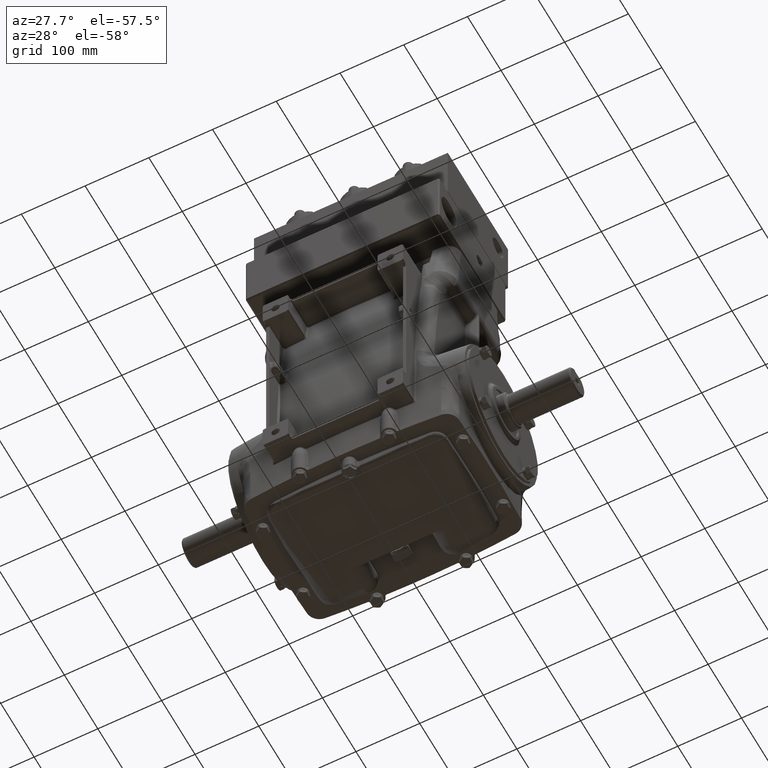
[diagram: clean part render]
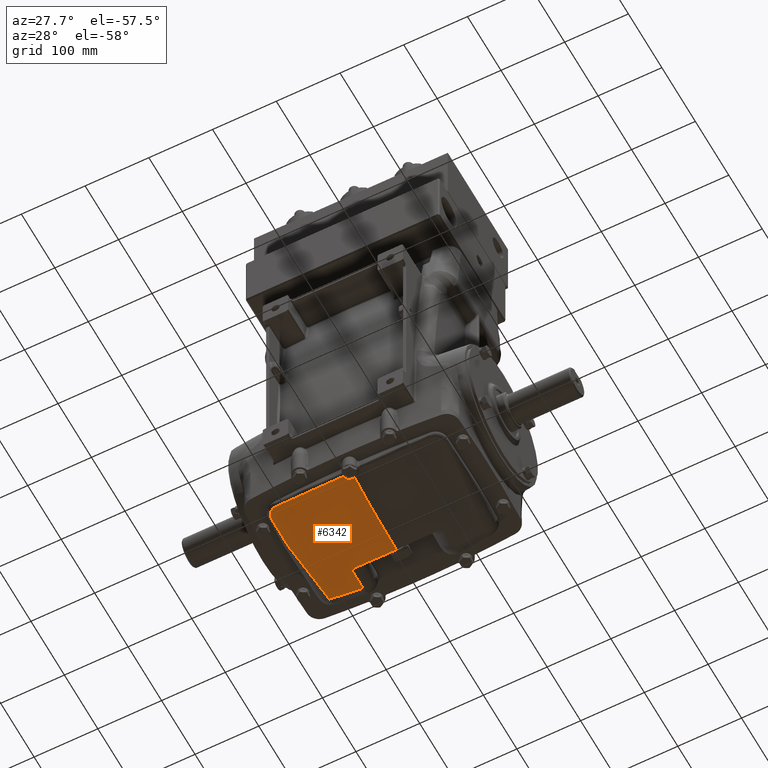
[diagram: same view with one face highlighted and labeled with its STEP entity id]
A machine part, auxiliary view. The second image highlights one B-rep face of the part: STEP entity #6342.
In plain terms, the highlighted toroidal blend (fillet) surface has major radius 300 mm and minor (blend) radius 700 mm.
Its self-contained STEP definition (entity closure, byte-faithful):
#177 = EDGE_CURVE ( 'NONE', #40398, #78798, #35794, .T. ) ;
#538 = CARTESIAN_POINT ( 'NONE',  ( -4.166371834084402259, 2.946303581037741814, -5.903031597596715585 ) ) ;
#1478 = CARTESIAN_POINT ( 'NONE',  ( -0.4877294735864423081, -3.659535562739759218, -5.586873153588124197 ) ) ;
#1548 = CARTESIAN_POINT ( 'NONE',  ( -5.288675306705783896, -1.063430563485664671, -5.631219784365756098 ) ) ;
#1776 = CARTESIAN_POINT ( 'NONE',  ( -2.658460200148967001, 1.645069077267908408, -6.050707771248394096 ) ) ;
#1956 = CARTESIAN_POINT ( 'NONE',  ( -5.306446629312242536, -1.245488058293945821, -5.609023974525473299 ) ) ;
#2357 = CARTESIAN_POINT ( 'NONE',  ( -5.163212558826809406, -0.01856817942538038779, -5.738850900110336717 ) ) ;
#2758 = CARTESIAN_POINT ( 'NONE',  ( -5.327698088664722498, -1.502005598826657407, -5.575584463984370132 ) ) ;
#3049 = CIRCLE ( 'NONE', #69015, 27.55905511811023700 ) ;
#3154 = CARTESIAN_POINT ( 'NONE',  ( -5.360178882565543645, -2.927451683223999623, -5.357800683653446860 ) ) ;
#3211 = CARTESIAN_POINT ( 'NONE',  ( -3.346919348482985394E-33, 1.582229971301458704, -6.140072423287879388 ) ) ;
#3947 = CARTESIAN_POINT ( 'NONE',  ( -4.864105943301919588, 2.460262575900201032, -5.833211702425360023 ) ) ;
#4586 = CARTESIAN_POINT ( 'NONE',  ( 0.000000000000000000, 1.824751546699278082, 21.41791557091272225 ) ) ;
#5018 = EDGE_CURVE ( 'NONE', #6894, #52162, #60319, .T. ) ;
#5390 = DIRECTION ( 'NONE',  ( 0.000000000000000000, 0.000000000000000000, 1.000000000000000000 ) ) ;
#6342 = ADVANCED_FACE ( 'NONE', ( #23349 ), #7472, .T. ) ;
#6739 = CARTESIAN_POINT ( 'NONE',  ( -0.3339704265119708415, -3.475526078226704563, -5.625229186685603011 ) ) ;
#6894 = VERTEX_POINT ( 'NONE', #46278 ) ;
#7302 = ORIENTED_EDGE ( 'NONE', *, *, #79582, .T. ) ;
#7472 = TOROIDAL_SURFACE ( 'NONE', #17855, 11.81102362204724265, 27.55905511811023700 ) ;
#7517 = B_SPLINE_CURVE_WITH_KNOTS ( 'NONE', 3,
 ( #22025, #46332, #58087, #27697, #1776, #64175, #9056, #28091, #33762, #39027 ),
 .UNSPECIFIED., .F., .F.,
 ( 4, 2, 2, 2, 4 ),
 ( -2.857996328437915161E-05, 0.002468332397666009228, 0.004965244758616397733, 0.007462157119566786671, 0.009959069480517175610 ),
 .UNSPECIFIED. ) ;
#7630 = CARTESIAN_POINT ( 'NONE',  ( -5.334166308895317066, -1.588840135189024672, -5.563929529875010438 ) ) ;
#7653 = CARTESIAN_POINT ( 'NONE',  ( -0.2297784026368260013, -3.413870119762763000, -5.637982275400829302 ) ) ;
#8025 = CARTESIAN_POINT ( 'NONE',  ( -5.229358085738220474, -0.5320842614292385919, -5.690705989168509227 ) ) ;
#8045 = CARTESIAN_POINT ( 'NONE',  ( -0.4877294735864423081, -3.659535562739759218, -5.586873153588124197 ) ) ;
#8436 = CARTESIAN_POINT ( 'NONE',  ( -5.282356873758459415, -1.001465767612395252, -5.638603529623959609 ) ) ;
#8834 = CARTESIAN_POINT ( 'NONE',  ( -5.254699371332353763, -0.7482418489130857608, -5.667429056045329538 ) ) ;
#9056 = CARTESIAN_POINT ( 'NONE',  ( -2.563748800980047982, 1.620961166111996477, -6.056834751248353577 ) ) ;
#9230 = CARTESIAN_POINT ( 'NONE',  ( -5.329906623145219235, -1.531032947888561813, -5.571709221407674661 ) ) ;
#10005 = CARTESIAN_POINT ( 'NONE',  ( -2.434261824659195828, 1.606639635857288750, -6.064947200536431104 ) ) ;
#10555 = EDGE_CURVE ( 'NONE', #72374, #69384, #12023, .T. ) ;
#11493 = ORIENTED_EDGE ( 'NONE', *, *, #19557, .T. ) ;
#11630 = CARTESIAN_POINT ( 'NONE',  ( -4.879996799677580377, -3.486948360581074713, -5.316731123404999870 ) ) ;
#11809 = ORIENTED_EDGE ( 'NONE', *, *, #10555, .T. ) ;
#11856 = ORIENTED_EDGE ( 'NONE', *, *, #73771, .T. ) ;
#12023 = B_SPLINE_CURVE_WITH_KNOTS ( 'NONE', 3,
 ( #60665, #36335, #54585, #11630, #18121, #75461, #75061, #73209, #17718, #42420, #48909, #61060, #30262, #79662, #73609, #42823, #67533, #12034, #36731, #61467, #55395, #69001, #45106, #27274, #15923, #40221 ),
 .UNSPECIFIED., .F., .F.,
 ( 4, 2, 2, 2, 2, 2, 2, 2, 2, 2, 2, 2, 4 ),
 ( 0.000000000000000000, 0.001393468656929867412, 0.002786937313859734824, 0.005573874627719434954, 0.006967343284649294560, 0.008360811941579152431, 0.01114774925543880399, 0.01254121791236861329, 0.01393468656929842779, 0.01672162388315804812, 0.01811509254008786610, 0.01950856119701768060, 0.02229549851087730961 ),
 .UNSPECIFIED. ) ;
#12034 = CARTESIAN_POINT ( 'NONE',  ( -5.281568287909769843, -3.201588821601273338, -5.318780719499171639 ) ) ;
#12418 = EDGE_CURVE ( 'NONE', #52162, #72374, #12726, .T. ) ;
#12439 = CARTESIAN_POINT ( 'NONE',  ( -0.4737448369408720494, -3.632634043546059122, -5.592511999654440125 ) ) ;
#12726 = B_SPLINE_CURVE_WITH_KNOTS ( 'NONE', 3,
 ( #1478, #18927, #20128, #56982, #31082, #38732 ),
 .UNSPECIFIED., .F., .F.,
 ( 4, 2, 4 ),
 ( 0.01236748594910167323, 0.06737170396115277349, 0.1223759219732038633 ),
 .UNSPECIFIED. ) ;
#14105 = CARTESIAN_POINT ( 'NONE',  ( -5.080195478884209415, 0.5902598933643962154, -5.784169362885123178 ) ) ;
#14509 = CARTESIAN_POINT ( 'NONE',  ( -5.325722550518120713, -1.476538987519105506, -5.578967110809579744 ) ) ;
#14914 = CARTESIAN_POINT ( 'NONE',  ( -4.968713628097812141, 1.433229839344952072, -5.823538398559389151 ) ) ;
#15164 = ORIENTED_EDGE ( 'NONE', *, *, #44663, .F. ) ;
#15314 = CARTESIAN_POINT ( 'NONE',  ( -5.163434554022859224, -0.02022539653561571463, -5.738709404092870336 ) ) ;
#15923 = CARTESIAN_POINT ( 'NONE',  ( -5.358678364081207235, -2.963529652962363592, -5.351632691506574169 ) ) ;
#16111 = CARTESIAN_POINT ( 'NONE',  ( -3.346919348482985394E-33, 1.582229971301458704, -6.140072423287879388 ) ) ;
#17676 = CARTESIAN_POINT ( 'NONE',  ( 0.000000000000000000, 1.824751546699278082, 33.22893919295996312 ) ) ;
#17718 = CARTESIAN_POINT ( 'NONE',  ( -5.049886546279415356, -3.426009580275169331, -5.306842600727459391 ) ) ;
#17855 = AXIS2_PLACEMENT_3D ( 'NONE', #17676, #42374, #62592 ) ;
#18121 = CARTESIAN_POINT ( 'NONE',  ( -4.897888106521786078, -3.483187433946809186, -5.315206216569228204 ) ) ;
#18927 = CARTESIAN_POINT ( 'NONE',  ( -1.210477209355807826, -3.654505220724530101, -5.578813219982557747 ) ) ;
#19041 = ORIENTED_EDGE ( 'NONE', *, *, #59282, .T. ) ;
#19308 = CARTESIAN_POINT ( 'NONE',  ( -0.2576272840699539435, -3.426672212073858859, -5.635338884855387143 ) ) ;
#19557 = EDGE_CURVE ( 'NONE', #69384, #40398, #78436, .T. ) ;
#20128 = CARTESIAN_POINT ( 'NONE',  ( -1.931853258259349948, -3.638305189545421481, -5.552868048543251334 ) ) ;
#20197 = CARTESIAN_POINT ( 'NONE',  ( -5.342057100842868778, -1.703464535393951484, -5.548258688867559130 ) ) ;
#20217 = CARTESIAN_POINT ( 'NONE',  ( -0.09848937057379751614, -3.372430618418078563, -5.646532334647739404 ) ) ;
#20601 = CARTESIAN_POINT ( 'NONE',  ( -4.969526799863153599, 1.426588576677151110, -5.823339350914161550 ) ) ;
#21000 = CARTESIAN_POINT ( 'NONE',  ( -5.316715640258879993, -1.361743683261042337, -5.594168467383742183 ) ) ;
#21402 = CARTESIAN_POINT ( 'NONE',  ( -5.255109503198851506, -0.7518373521915462376, -5.667033288613509079 ) ) ;
#22025 = CARTESIAN_POINT ( 'NONE',  ( -2.812148308104203576, 1.701088795419487543, -6.040299091886773830 ) ) ;
#22417 = CARTESIAN_POINT ( 'NONE',  ( -2.812132526087493645, 3.010549370942952496, -6.014990193079878367 ) ) ;
#22592 = CARTESIAN_POINT ( 'NONE',  ( -0.4060737577237384932, 1.582229971301458038, -6.140072423287883829 ) ) ;
#23349 = FACE_OUTER_BOUND ( 'NONE', #77383, .T. ) ;
#23464 = CARTESIAN_POINT ( 'NONE',  ( -2.812148308104203576, 1.701088795419487543, -6.040299091886773830 ) ) ;
#23802 = CARTESIAN_POINT ( 'NONE',  ( -0.2297784026368260013, -3.413870119762763000, -5.637982275400829302 ) ) ;
#24916 = VERTEX_POINT ( 'NONE', #45600 ) ;
#26260 = CARTESIAN_POINT ( 'NONE',  ( -5.254347282928314655, -0.7451582491092477722, -5.667768193110310548 ) ) ;
#26653 = CARTESIAN_POINT ( 'NONE',  ( -5.255927702950783598, -0.7590217903975217117, -5.666241408260324519 ) ) ;
#27065 = CARTESIAN_POINT ( 'NONE',  ( -5.325471115806772460, -1.473329931211842192, -5.579392218848997942 ) ) ;
#27274 = CARTESIAN_POINT ( 'NONE',  ( -5.353946565448759465, -2.998995579519901256, -5.345947324219060270 ) ) ;
#27465 = CARTESIAN_POINT ( 'NONE',  ( -5.325518707966256038, -1.473936808473037097, -5.579311844394084119 ) ) ;
#27697 = CARTESIAN_POINT ( 'NONE',  ( -2.689715663435853443, 1.655026308472133056, -6.048643496143031761 ) ) ;
#27870 = CARTESIAN_POINT ( 'NONE',  ( -5.325600280168608869, -1.474977735342298812, -5.579173957771858205 ) ) ;
#28091 = CARTESIAN_POINT ( 'NONE',  ( -2.499580588558071526, 1.610597889679213468, -6.060890936602916668 ) ) ;
#28710 = ORIENTED_EDGE ( 'NONE', *, *, #177, .T. ) ;
#28765 = B_SPLINE_CURVE_WITH_KNOTS ( 'NONE', 3,
 ( #52604, #39232, #76088, #77278, #20217, #63974, #40434, #7653 ),
 .UNSPECIFIED., .F., .F.,
 ( 4, 2, 2, 4 ),
 ( 0.006022522450713315399, 0.007529121385804944146, 0.009035720320896573760, 0.01204891819107983299 ),
 .UNSPECIFIED. ) ;
#29458 = CARTESIAN_POINT ( 'NONE',  ( -4.934323708969340139, 1.714563867073703118, -5.831874913335743038 ) ) ;
#30190 = CARTESIAN_POINT ( 'NONE',  ( -2.812148308104203576, 1.701088795419487543, -6.040299091886773830 ) ) ;
#30262 = CARTESIAN_POINT ( 'NONE',  ( -5.168341137774181249, -3.342557198949430042, -5.307357947498045903 ) ) ;
#30736 = CARTESIAN_POINT ( 'NONE',  ( -2.812144280299276655, 2.574247221612352643, -6.033827933789728704 ) ) ;
#31082 = CARTESIAN_POINT ( 'NONE',  ( -4.090517692144737261, -3.545441420707249325, -5.403650496663405356 ) ) ;
#32327 = CARTESIAN_POINT ( 'NONE',  ( -5.326007232351605225, -1.480180942376793762, -5.578484348860531128 ) ) ;
#32733 = CARTESIAN_POINT ( 'NONE',  ( -4.981005914649504263, 1.333616335777254802, -5.820393855862480592 ) ) ;
#33135 = CARTESIAN_POINT ( 'NONE',  ( -5.164984239179561953, -0.03180328750818615935, -5.737718521259472126 ) ) ;
#33538 = CARTESIAN_POINT ( 'NONE',  ( -5.254405996074729579, -0.7456722834129653199, -5.667711675632794766 ) ) ;
#33762 = CARTESIAN_POINT ( 'NONE',  ( -2.467157795062526748, 1.607300091274789677, -6.062914527770900897 ) ) ;
#33935 = CARTESIAN_POINT ( 'NONE',  ( -5.326574133655283205, -1.487460984550732057, -5.577518350138437775 ) ) ;
#34093 = CARTESIAN_POINT ( 'NONE',  ( -2.812132526087493645, 3.010549370942952496, -6.014990193079878367 ) ) ;
#35524 = CARTESIAN_POINT ( 'NONE',  ( -4.840242302779922845, 2.899656050760234027, -5.821340785861177203 ) ) ;
#35794 = B_SPLINE_CURVE_WITH_KNOTS ( 'NONE', 3,
 ( #56030, #538, #37759, #34093 ),
 .UNSPECIFIED., .F., .F.,
 ( 4, 4 ),
 ( 0.000000000000000000, 0.05182488106915178472 ),
 .UNSPECIFIED. ) ;
#36335 = CARTESIAN_POINT ( 'NONE',  ( -4.825956977166343087, -3.494867071439379025, -5.321965457097936003 ) ) ;
#36731 = CARTESIAN_POINT ( 'NONE',  ( -5.298649251694552476, -3.169923180994641765, -5.322347823598065020 ) ) ;
#37759 = CARTESIAN_POINT ( 'NONE',  ( -3.490336519798898696, 2.983315668818144140, -5.967567498589518848 ) ) ;
#38397 = CARTESIAN_POINT ( 'NONE',  ( -5.254494047360799946, -0.7464432762214903150, -5.667626896297045747 ) ) ;
#38732 = CARTESIAN_POINT ( 'NONE',  ( -4.807788219395104257, -3.496116492186950975, -5.323983456037651329 ) ) ;
#38799 = CARTESIAN_POINT ( 'NONE',  ( -5.046335931002461805, 0.8329406397847033405, -5.798660693579442693 ) ) ;
#39027 = CARTESIAN_POINT ( 'NONE',  ( -2.434261824659195828, 1.606639635857288750, -6.064947200536431104 ) ) ;
#39211 = CARTESIAN_POINT ( 'NONE',  ( -5.371031495846720460, -2.478689205567711440, -5.432874113277573969 ) ) ;
#39232 = CARTESIAN_POINT ( 'NONE',  ( -0.01966230270327786606, -3.364041038235045633, -5.648261671423675523 ) ) ;
#39609 = CARTESIAN_POINT ( 'NONE',  ( -5.257555849138635828, -0.7733643939540989498, -5.664656283368848300 ) ) ;
#40009 = CARTESIAN_POINT ( 'NONE',  ( -5.254311146328292104, -0.7448419227855246350, -5.667802968163186073 ) ) ;
#40221 = CARTESIAN_POINT ( 'NONE',  ( -5.360178882565543645, -2.927451683223999623, -5.357800683653446860 ) ) ;
#40398 = VERTEX_POINT ( 'NONE', #72483 ) ;
#40434 = CARTESIAN_POINT ( 'NONE',  ( -0.1936990375712535351, -3.397284485499378892, -5.641406895981324610 ) ) ;
#40809 = CARTESIAN_POINT ( 'NONE',  ( -0.8119747735864564220, 1.584264967571028748, -6.133809348770810743 ) ) ;
#40931 = B_SPLINE_CURVE_WITH_KNOTS ( 'NONE', 3,
 ( #16111, #22592, #40809, #65531, #48093, #10005 ),
 .UNSPECIFIED., .F., .F.,
 ( 4, 2, 4 ),
 ( 1.999312279308687694E-07, 0.03093238034559044405, 0.06186456075995295373 ),
 .UNSPECIFIED. ) ;
#41610 = CARTESIAN_POINT ( 'NONE',  ( -4.906771388503366360, 1.973621814741317371, -5.834855720500262244 ) ) ;
#42012 = CARTESIAN_POINT ( 'NONE',  ( -4.967966940072961357, 1.439334643286055870, -5.823720037227320567 ) ) ;
#42374 = DIRECTION ( 'NONE',  ( 0.000000000000000000, -1.000000000000000000, 0.000000000000000000 ) ) ;
#42420 = CARTESIAN_POINT ( 'NONE',  ( -5.081512726748598219, -3.407563633568248207, -5.306289430408320129 ) ) ;
#42540 = VERTEX_POINT ( 'NONE', #3211 ) ;
#42823 = CARTESIAN_POINT ( 'NONE',  ( -5.241086578144337871, -3.261236225363271846, -5.313054194956410292 ) ) ;
#44012 = CARTESIAN_POINT ( 'NONE',  ( -0.3576042505593979848, -3.494577326924172223, -5.621279233931828934 ) ) ;
#44490 = CARTESIAN_POINT ( 'NONE',  ( -5.146668262404692662, 0.1048944520025525684, -5.749381706151599047 ) ) ;
#44663 = EDGE_CURVE ( 'NONE', #42540, #45573, #40931, .T. ) ;
#44895 = CARTESIAN_POINT ( 'NONE',  ( -5.163064503765196989, -0.01746306014009076438, -5.738945225080988699 ) ) ;
#45106 = CARTESIAN_POINT ( 'NONE',  ( -5.342144275654240992, -3.051303830555013974, -5.338125044618379000 ) ) ;
#45304 = CARTESIAN_POINT ( 'NONE',  ( -5.347746349722945602, -1.800017203531916410, -5.534653766228270655 ) ) ;
#45573 = VERTEX_POINT ( 'NONE', #66684 ) ;
#45600 = CARTESIAN_POINT ( 'NONE',  ( 3.842746221509609454E-15, -3.364041038235044301, -5.648261671423673747 ) ) ;
#45708 = CARTESIAN_POINT ( 'NONE',  ( -5.206544025624651795, -0.3500233411345941570, -5.708710549602758810 ) ) ;
#46101 = CARTESIAN_POINT ( 'NONE',  ( -5.171109672741192043, -0.07772694846112994382, -5.733748570491312258 ) ) ;
#46278 = CARTESIAN_POINT ( 'NONE',  ( -0.2297784026368260013, -3.413870119762763000, -5.637982275400829302 ) ) ;
#46332 = CARTESIAN_POINT ( 'NONE',  ( -2.781892614608939329, 1.688684315025650751, -6.042409957934991027 ) ) ;
#47787 = VERTEX_POINT ( 'NONE', #30190 ) ;
#48093 = CARTESIAN_POINT ( 'NONE',  ( -2.029067814688756410, 1.598504518523331086, -6.089984517228142380 ) ) ;
#48101 = CARTESIAN_POINT ( 'NONE',  ( -4.968017340805079840, 1.438922390327193490, -5.823707808902630845 ) ) ;
#48909 = CARTESIAN_POINT ( 'NONE',  ( -5.096777293988907331, -3.397681871397706832, -5.306199164813016012 ) ) ;
#50980 = CARTESIAN_POINT ( 'NONE',  ( -5.179094886603560433, -0.1379931484735895664, -5.728442395348172234 ) ) ;
#51378 = CARTESIAN_POINT ( 'NONE',  ( -5.357701259027894736, -1.990861342919672872, -5.507261087595051841 ) ) ;
#51796 = CARTESIAN_POINT ( 'NONE',  ( -5.096980045203364895, 0.4688844028321828006, -5.776220967374339210 ) ) ;
#52162 = VERTEX_POINT ( 'NONE', #8045 ) ;
#52576 = CARTESIAN_POINT ( 'NONE',  ( -4.968133347057218430, 1.437973629507112383, -5.823679643619483315 ) ) ;
#52604 = CARTESIAN_POINT ( 'NONE',  ( 3.842746221509609454E-15, -3.364041038235044301, -5.648261671423673747 ) ) ;
#53433 = ORIENTED_EDGE ( 'NONE', *, *, #5018, .T. ) ;
#54585 = CARTESIAN_POINT ( 'NONE',  ( -4.844032478405734032, -3.492783821194469507, -5.320111385042866736 ) ) ;
#55072 = CARTESIAN_POINT ( 'NONE',  ( -2.812132526087493645, 3.010549370942952496, -6.014990193079878367 ) ) ;
#55395 = CARTESIAN_POINT ( 'NONE',  ( -5.326361990746772967, -3.102858777173423732, -5.330900886658606730 ) ) ;
#56030 = CARTESIAN_POINT ( 'NONE',  ( -4.840242302779922845, 2.899656050760234027, -5.821340785861177203 ) ) ;
#56982 = CARTESIAN_POINT ( 'NONE',  ( -3.371873501537796525, -3.583773380137238895, -5.465286664663715044 ) ) ;
#57053 = CARTESIAN_POINT ( 'NONE',  ( -5.369261606014290145, -2.709057018856346311, -5.395138128778475206 ) ) ;
#57448 = CARTESIAN_POINT ( 'NONE',  ( -4.974424776607643928, 1.386742074371388744, -5.822113300647738576 ) ) ;
#57848 = CARTESIAN_POINT ( 'NONE',  ( -5.162979830439747175, -0.01683111939187460424, -5.738999142381384644 ) ) ;
#58087 = CARTESIAN_POINT ( 'NONE',  ( -2.751387458887337711, 1.676816387502252592, -6.044497474844345852 ) ) ;
#58320 = EDGE_CURVE ( 'NONE', #47787, #45573, #7517, .T. ) ;
#58657 = CARTESIAN_POINT ( 'NONE',  ( -4.971155850280976729, 1.413306203756706125, -5.822936717939398932 ) ) ;
#59282 = EDGE_CURVE ( 'NONE', #42540, #24916, #3049, .T. ) ;
#59703 = DIRECTION ( 'NONE',  ( -1.000000000000000000, -0.000000000000000000, -0.000000000000000000 ) ) ;
#60319 = B_SPLINE_CURVE_WITH_KNOTS ( 'NONE', 3,
 ( #23802, #19308, #68718, #6739, #44012, #80075, #79671, #73218, #12439, #61866 ),
 .UNSPECIFIED., .F., .F.,
 ( 4, 2, 2, 2, 4 ),
 ( 0.02146166848574504460, 0.02380266222305024715, 0.02614365596035545317, 0.02848464969766065918, 0.03082564343496586173 ),
 .UNSPECIFIED. ) ;
#60665 = CARTESIAN_POINT ( 'NONE',  ( -4.807788219395104257, -3.496116492186950975, -5.323983456037651329 ) ) ;
#61060 = CARTESIAN_POINT ( 'NONE',  ( -5.140980375108047618, -3.366126144661426345, -5.306466500724023483 ) ) ;
#61467 = CARTESIAN_POINT ( 'NONE',  ( -5.319986711889992392, -3.119926642901834413, -5.328644194265905298 ) ) ;
#61866 = CARTESIAN_POINT ( 'NONE',  ( -0.4877294735864423081, -3.659535562739759218, -5.586873153588124197 ) ) ;
#62170 = ORIENTED_EDGE ( 'NONE', *, *, #12418, .T. ) ;
#62592 = DIRECTION ( 'NONE',  ( 0.000000000000000000, 0.000000000000000000, -1.000000000000000000 ) ) ;
#62653 = CARTESIAN_POINT ( 'NONE',  ( -5.360178882565543645, -2.927451683223999623, -5.357800683653446860 ) ) ;
#63134 = CARTESIAN_POINT ( 'NONE',  ( -4.994341197797926846, 1.227375374042257494, -5.816664486904348230 ) ) ;
#63539 = CARTESIAN_POINT ( 'NONE',  ( -5.267093945986094816, -0.8586844433705153046, -5.655109460783635633 ) ) ;
#63948 = CARTESIAN_POINT ( 'NONE',  ( -5.362439750434917940, -2.115075687759506717, -5.488755989579633621 ) ) ;
#63974 = CARTESIAN_POINT ( 'NONE',  ( -0.1563399999800972606, -3.384940182885188165, -5.643952863922299557 ) ) ;
#64175 = CARTESIAN_POINT ( 'NONE',  ( -2.595490492864124032, 1.628047475268865396, -6.054802391501787007 ) ) ;
#64342 = CARTESIAN_POINT ( 'NONE',  ( -5.272281251762199084, -0.9065982657666091793, -5.649617736623124387 ) ) ;
#64750 = CARTESIAN_POINT ( 'NONE',  ( -5.122024489410215153, 0.2868460802058692138, -5.763699332482132398 ) ) ;
#65531 = CARTESIAN_POINT ( 'NONE',  ( -1.623431635602357481, 1.592401253405402173, -6.108768435804607932 ) ) ;
#66684 = CARTESIAN_POINT ( 'NONE',  ( -2.434261824659195828, 1.606639635857288750, -6.064947200536431104 ) ) ;
#67533 = CARTESIAN_POINT ( 'NONE',  ( -5.251736528445274388, -3.246633039124112940, -5.314367873378915696 ) ) ;
#68718 = CARTESIAN_POINT ( 'NONE',  ( -0.2840101546505077179, -3.441600826494962906, -5.632253356662554111 ) ) ;
#69001 = CARTESIAN_POINT ( 'NONE',  ( -5.337421209621137308, -3.068590556601563879, -5.335636005610887800 ) ) ;
#69015 = AXIS2_PLACEMENT_3D ( 'NONE', #4586, #59703, #5390 ) ;
#69203 = CARTESIAN_POINT ( 'NONE',  ( -5.071750371976681215, 0.6510181333602451659, -5.787947540946589697 ) ) ;
#69384 = VERTEX_POINT ( 'NONE', #62653 ) ;
#69597 = CARTESIAN_POINT ( 'NONE',  ( -5.198477331368216880, -0.2868187684920702751, -5.714774087625277055 ) ) ;
#70002 = CARTESIAN_POINT ( 'NONE',  ( -4.968307380608080415, 1.436550489624570215, -5.823637355180904862 ) ) ;
#70138 = ORIENTED_EDGE ( 'NONE', *, *, #58320, .T. ) ;
#70802 = CARTESIAN_POINT ( 'NONE',  ( -5.167039075899904077, -0.04718013345005189763, -5.736396295773646514 ) ) ;
#72374 = VERTEX_POINT ( 'NONE', #78210 ) ;
#72483 = CARTESIAN_POINT ( 'NONE',  ( -4.840242302779922845, 2.899656050760234027, -5.821340785861177203 ) ) ;
#73209 = CARTESIAN_POINT ( 'NONE',  ( -5.033724942537766367, -3.434453761081072365, -5.307302620882437871 ) ) ;
#73218 = CARTESIAN_POINT ( 'NONE',  ( -0.4577162347525901009, -3.607212763739313210, -5.597826739627022263 ) ) ;
#73609 = CARTESIAN_POINT ( 'NONE',  ( -5.218333242062025867, -3.289595542081743762, -5.310752198899931109 ) ) ;
#73674 = CARTESIAN_POINT ( 'NONE',  ( -2.812149532266563501, 2.137760349558801121, -6.042263470602809328 ) ) ;
#73771 = EDGE_CURVE ( 'NONE', #78798, #47787, #77909, .T. ) ;
#75061 = CARTESIAN_POINT ( 'NONE',  ( -4.984472006344477180, -3.457394581205895268, -5.309210827171242819 ) ) ;
#75255 = CARTESIAN_POINT ( 'NONE',  ( -5.021702686355935086, 1.014938988943109743, -5.808043524251670142 ) ) ;
#75461 = CARTESIAN_POINT ( 'NONE',  ( -4.950513585213516699, -3.469580393225757842, -5.311184794286596400 ) ) ;
#75658 = CARTESIAN_POINT ( 'NONE',  ( -5.163951931119646233, -0.02408900375344309383, -5.738379187375463708 ) ) ;
#76067 = CARTESIAN_POINT ( 'NONE',  ( -5.260779149100231145, -0.8019445141052691239, -5.661480718745800722 ) ) ;
#76088 = CARTESIAN_POINT ( 'NONE',  ( -0.03935245566530805317, -3.365073462321861886, -5.648048895758050136 ) ) ;
#76464 = CARTESIAN_POINT ( 'NONE',  ( -5.242719921505767822, -0.6433876430860706597, -5.678955230862253067 ) ) ;
#76860 = CARTESIAN_POINT ( 'NONE',  ( -5.185673076906478940, -0.1882317149526777922, -5.723883935373456744 ) ) ;
#77278 = CARTESIAN_POINT ( 'NONE',  ( -0.07879009264106012767, -3.369263573939517364, -5.647185192691272171 ) ) ;
#77383 = EDGE_LOOP ( 'NONE', ( #15164, #19041, #7302, #53433, #62170, #11809, #11493, #28710, #11856, #70138 ) ) ;
#77657 = CARTESIAN_POINT ( 'NONE',  ( -4.848991911919143583, 2.687846806962476798, -5.828587178519216039 ) ) ;
#77909 = B_SPLINE_CURVE_WITH_KNOTS ( 'NONE', 3,
 ( #55072, #30736, #73674, #23464 ),
 .UNSPECIFIED., .F., .F.,
 ( 4, 4 ),
 ( 0.000000000000000000, 0.03326646946209799866 ),
 .UNSPECIFIED. ) ;
#78210 = CARTESIAN_POINT ( 'NONE',  ( -4.807788219395104257, -3.496116492186950975, -5.323983456037651329 ) ) ;
#78436 = B_SPLINE_CURVE_WITH_KNOTS ( 'NONE', 3,
 ( #3154, #57053, #39211, #63948, #51378, #45304, #20197, #7630, #9230, #2758, #33935, #32327, #14509, #27870, #27465, #27065, #21000, #1956, #1548, #8436, #64342, #63539, #76067, #39609, #26653, #21402, #8834, #38397, #33538, #26260, #40009, #76464, #8025, #45708, #69597, #76860, #50980, #46101, #70802, #33135, #75658, #15314, #2357, #44895, #57848, #44490, #64750, #51796, #14105, #69203, #38799, #75255, #63134, #32733, #57448, #58657, #20601, #14914, #70002, #52576, #48101, #42012, #29458, #41610, #3947, #77657, #35524 ),
 .UNSPECIFIED., .F., .F.,
 ( 4, 2, 2, 1, 1, 1, 1, 1, 1, 1, 2, 2, 2, 2, 1, 1, 1, 1, 1, 1, 1, 2, 2, 2, 2, 1, 1, 1, 1, 1, 1, 2, 2, 1, 2, 2, 1, 1, 1, 1, 1, 1, 1, 1, 2, 2, 2, 4 ),
 ( 0.000000000000000000, 0.1250000000000443534, 0.1875000000000663913, 0.2187500000000772993, 0.2343750000000827116, 0.2421875000000854872, 0.2460937500000867639, 0.2480468750000874301, 0.2490234375000877631, 0.2495117187500879574, 0.2497558593750880684, 0.2500000000000881517, 0.3125000000001407763, 0.3437500000001670331, 0.3593750000001802447, 0.3671875000001869060, 0.3710937500001902922, 0.3730468750001920131, 0.3740234375001927902, 0.3745117187501931233, 0.3747558593751932343, 0.3748779296876932343, 0.3750000000001932343, 0.4375000000001768030, 0.4687500000001685319, 0.4843750000001644240, 0.4921875000001623701, 0.4960937500001613709, 0.4980468750001609268, 0.4990234375001606493, 0.4995117187501605382, 0.4997558593751604272, 0.5000000000001603162, 0.5625000000001483258, 0.5937500000001423306, 0.6250000000001362244, 0.6875000000001241229, 0.7187500000001180167, 0.7343750000001150191, 0.7421875000001134648, 0.7460937500001127987, 0.7480468750001123546, 0.7490234375001121325, 0.7495117187501119105, 0.7497558593751117995, 0.7500000000001116884, 0.8750000000000558442, 1.000000000000000000 ),
 .UNSPECIFIED. ) ;
#78798 = VERTEX_POINT ( 'NONE', #22417 ) ;
#79582 = EDGE_CURVE ( 'NONE', #24916, #6894, #28765, .T. ) ;
#79662 = CARTESIAN_POINT ( 'NONE',  ( -5.206194522468571506, -3.303374770522423454, -5.309764036319435832 ) ) ;
#79671 = CARTESIAN_POINT ( 'NONE',  ( -0.4217040767749661301, -3.559235909095109118, -5.607836417959802588 ) ) ;
#80075 = CARTESIAN_POINT ( 'NONE',  ( -0.4017209433856091527, -3.536680020508904398, -5.612531385695472608 ) ) ;